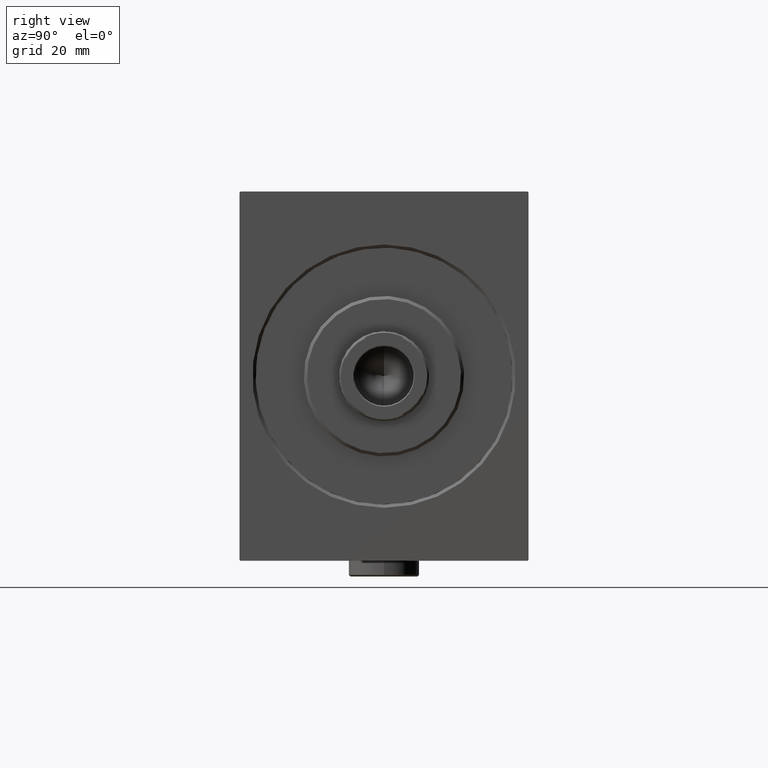
[diagram: clean part render]
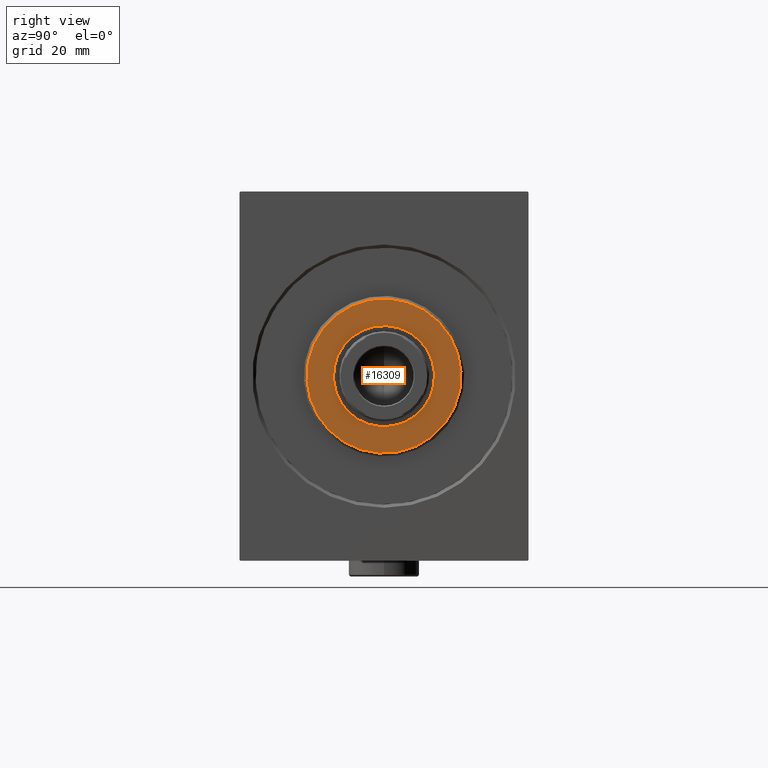
[diagram: same view with one face highlighted and labeled with its STEP entity id]
A machine part, right view. The second image highlights one B-rep face of the part: STEP entity #16309.
In plain terms, the highlighted planar face has unit normal (1, -0, -0).
Its self-contained STEP definition (entity closure, byte-faithful):
#424 = ORIENTED_EDGE ( 'NONE', *, *, #9410, .T. ) ;
#629 = FACE_BOUND ( 'NONE', #1747, .T. ) ;
#892 = DIRECTION ( 'NONE',  ( 1.000000000000000000, -0.000000000000000000, 0.000000000000000000 ) ) ;
#1631 = CIRCLE ( 'NONE', #33134, 23.99999999999999289 ) ;
#1747 = EDGE_LOOP ( 'NONE', ( #25400, #5916 ) ) ;
#4874 = EDGE_CURVE ( 'NONE', #40644, #27951, #23068, .T. ) ;
#5303 = DIRECTION ( 'NONE',  ( 0.000000000000000000, 0.000000000000000000, -1.000000000000000000 ) ) ;
#5916 = ORIENTED_EDGE ( 'NONE', *, *, #13367, .F. ) ;
#8022 = ORIENTED_EDGE ( 'NONE', *, *, #4874, .T. ) ;
#9410 = EDGE_CURVE ( 'NONE', #27951, #40644, #1631, .T. ) ;
#9957 = DIRECTION ( 'NONE',  ( 1.000000000000000000, 0.000000000000000000, 0.000000000000000000 ) ) ;
#10973 = CARTESIAN_POINT ( 'NONE',  ( 3.000000000000000000, 0.000000000000000000, 0.000000000000000000 ) ) ;
#11190 = CIRCLE ( 'NONE', #35590, 15.75000000000000000 ) ;
#12037 = DIRECTION ( 'NONE',  ( 1.000000000000000000, 0.000000000000000000, 0.000000000000000000 ) ) ;
#13367 = EDGE_CURVE ( 'NONE', #14153, #33132, #43998, .T. ) ;
#14065 = FACE_OUTER_BOUND ( 'NONE', #17569, .T. ) ;
#14153 = VERTEX_POINT ( 'NONE', #30720 ) ;
#16309 = ADVANCED_FACE ( 'NONE', ( #14065, #629 ), #23705, .T. ) ;
#16986 = DIRECTION ( 'NONE',  ( 1.000000000000000000, -0.000000000000000000, 0.000000000000000000 ) ) ;
#17341 = AXIS2_PLACEMENT_3D ( 'NONE', #10973, #892, #20626 ) ;
#17569 = EDGE_LOOP ( 'NONE', ( #8022, #424 ) ) ;
#17752 = DIRECTION ( 'NONE',  ( 0.000000000000000000, 0.000000000000000000, -1.000000000000000000 ) ) ;
#18617 = CARTESIAN_POINT ( 'NONE',  ( 3.000000000000000000, 0.000000000000000000, 0.000000000000000000 ) ) ;
#19655 = EDGE_CURVE ( 'NONE', #33132, #14153, #11190, .T. ) ;
#20039 = DIRECTION ( 'NONE',  ( 0.000000000000000000, 0.000000000000000000, -1.000000000000000000 ) ) ;
#20577 = CARTESIAN_POINT ( 'NONE',  ( 3.000000000000000000, 0.000000000000000000, 0.000000000000000000 ) ) ;
#20626 = DIRECTION ( 'NONE',  ( 0.000000000000000000, 0.000000000000000000, -1.000000000000000000 ) ) ;
#21340 = DIRECTION ( 'NONE',  ( 1.000000000000000000, -0.000000000000000000, 0.000000000000000000 ) ) ;
#23068 = CIRCLE ( 'NONE', #17341, 23.99999999999999289 ) ;
#23705 = PLANE ( 'NONE',  #34745 ) ;
#25400 = ORIENTED_EDGE ( 'NONE', *, *, #19655, .F. ) ;
#27449 = CARTESIAN_POINT ( 'NONE',  ( 3.000000000000000000, 0.000000000000000000, 23.99999999999999289 ) ) ;
#27951 = VERTEX_POINT ( 'NONE', #37163 ) ;
#30720 = CARTESIAN_POINT ( 'NONE',  ( 3.000000000000000000, 1.928818708657081344E-15, 15.75000000000000000 ) ) ;
#30902 = DIRECTION ( 'NONE',  ( 0.000000000000000000, 0.000000000000000000, -1.000000000000000000 ) ) ;
#33132 = VERTEX_POINT ( 'NONE', #44356 ) ;
#33134 = AXIS2_PLACEMENT_3D ( 'NONE', #18617, #21340, #17752 ) ;
#34745 = AXIS2_PLACEMENT_3D ( 'NONE', #20577, #16986, #30902 ) ;
#35590 = AXIS2_PLACEMENT_3D ( 'NONE', #40725, #9957, #20039 ) ;
#37163 = CARTESIAN_POINT ( 'NONE',  ( 3.000000000000000000, 3.000384657911015074E-15, -23.99999999999999289 ) ) ;
#39427 = CARTESIAN_POINT ( 'NONE',  ( 3.000000000000000000, 0.000000000000000000, 0.000000000000000000 ) ) ;
#40644 = VERTEX_POINT ( 'NONE', #27449 ) ;
#40725 = CARTESIAN_POINT ( 'NONE',  ( 3.000000000000000000, 0.000000000000000000, 0.000000000000000000 ) ) ;
#42573 = AXIS2_PLACEMENT_3D ( 'NONE', #39427, #12037, #5303 ) ;
#43998 = CIRCLE ( 'NONE', #42573, 15.75000000000000000 ) ;
#44356 = CARTESIAN_POINT ( 'NONE',  ( 3.000000000000000000, 0.000000000000000000, -15.75000000000000000 ) ) ;